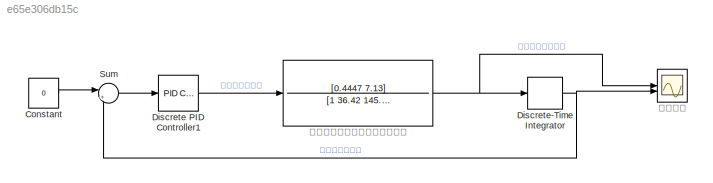
MODEL slx_e65e306db15c
KIND model
CONFIG AbsTol = auto
CONFIG EnableMultiTasking = off
CONFIG FixedStep = auto
CONFIG MaxStep = auto
CONFIG MinStep = auto
CONFIG RelTol = 1e-3
CONFIG SampleTimeConstraint = Unconstrained
CONFIG SolverName = VariableStepAuto
CONFIG StartTime = 0.0
CONFIG StopTime = 2
BLOCK [Constant] Constant
  Value = 0
BLOCK [Reference] Discrete PID Controller1  REF=slpidlib/PID Controller
  LibrarySourceBlock = simulink/Discrete/Discrete PID Controller
  SourceBlock = slpidlib/PID Controller
  SourceType = PID 1dof
BLOCK [DiscreteIntegrator] Discrete-Time Integrator
  ICPrevOutput = DiscIntNeverNeededParam
  ICPrevScaledInput = DiscIntNeverNeededParam
  InitialCondition = 1
  InitialConditionSetting = Auto
  SampleTime = -1
BLOCK [Sum] Sum
  Inputs = |+-
BLOCK [TransferFcn] ロボットの回転方向の伝達関数
  Denominator = [1 36.42 145.2]
  Numerator = [0.4447 7.13]
BLOCK [Scope] 単ループ
  Floating = off
  NumInputPorts = 2
  ScopeSpecificationString = Simulink.scopes.TimeScopeBlockCfg('CurrentConfiguration', extmgr.ConfigurationSet(extmgr.Configuration('Core','General UI',true),extmgr.Configuration('Core','Source UI',true),extmgr.Configuration('Sources','WiredSimulink',true),extmgr.Configuration('Visuals','Time Domain',true,'SerializedDisplays',{struct('MinYLimReal','-8.11994','MaxYLimReal','1.29897','YLabelReal','','MinYLimMag','0.00000','MaxY...<+2008ch>
LINE Constant:1 -> Sum:1
LINE Discrete PID Controller1:1 -> ロボットの回転方向の伝達関数:1
NET Discrete-Time Integrator:1 -> Sum:2, 単ループ:2
LINE Sum:1 -> Discrete PID Controller1:1
NET ロボットの回転方向の伝達関数:1 -> Discrete-Time Integrator:1, 単ループ:1
note: NET lines group one-source signal fan-out (src -> all destinations, sorted); 1:1 wires keep LINE
